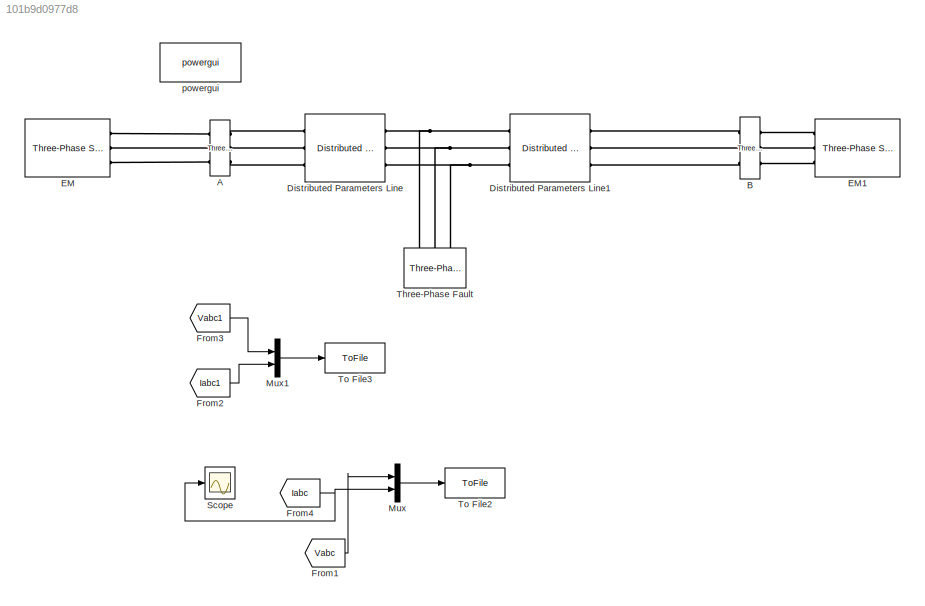
MODEL slx_101b9d0977d8
KIND model
CONFIG AbsTol = auto
CONFIG EnableMultiTasking = off
CONFIG FixedStep = auto
CONFIG MaxStep = auto
CONFIG MinStep = auto
CONFIG RelTol = 1e-3
CONFIG SampleTimeConstraint = Unconstrained
CONFIG Solver = ode23tb
CONFIG SolverName = ode23tb
CONFIG StartTime = 0.0
CONFIG StopTime = 0.1
BLOCK [Reference] A  REF=powerlib/Measurements/Three-Phase
V-I Measurement
  Ports = [0, 0, 0, 0, 0, 3, 3]
  SourceBlock = powerlib/Measurements/Three-Phase\nV-I Measurement
  SourceProductBaseCode = PS
  SourceProductName = Simscape Electrical
  SourceType = Three-Phase VI Measurement
BLOCK [Reference] B  REF=powerlib/Measurements/Three-Phase
V-I Measurement
  Ports = [0, 0, 0, 0, 0, 3, 3]
  SourceBlock = powerlib/Measurements/Three-Phase\nV-I Measurement
  SourceProductBaseCode = PS
  SourceProductName = Simscape Electrical
  SourceType = Three-Phase VI Measurement
BLOCK [Reference] Distributed Parameters Line  REF=powerlib/Elements/Distributed Parameters Line
  Ports = [0, 0, 0, 0, 0, 3, 3]
  SourceBlock = powerlib/Elements/Distributed Parameters Line
  SourceProductBaseCode = PS
  SourceProductName = Simscape Electrical
  SourceType = Distributed Parameters Line
BLOCK [Reference] Distributed Parameters Line1  REF=powerlib/Elements/Distributed Parameters Line
  Ports = [0, 0, 0, 0, 0, 3, 3]
  SourceBlock = powerlib/Elements/Distributed Parameters Line
  SourceProductBaseCode = PS
  SourceProductName = Simscape Electrical
  SourceType = Distributed Parameters Line
BLOCK [Reference] EM  REF=powerlib/Electrical
Sources/Three-Phase Source
  Ports = [0, 0, 0, 0, 0, 0, 3]
  SourceBlock = powerlib/Electrical\nSources/Three-Phase Source
  SourceProductBaseCode = PS
  SourceProductName = Simscape Electrical
  SourceType = Three-Phase Source
BLOCK [Reference] EM1  REF=powerlib/Electrical
Sources/Three-Phase Source
  Ports = [0, 0, 0, 0, 0, 0, 3]
  SourceBlock = powerlib/Electrical\nSources/Three-Phase Source
  SourceProductBaseCode = PS
  SourceProductName = Simscape Electrical
  SourceType = Three-Phase Source
BLOCK [From] From1
  GotoTag = Vabc
  TagVisibility = global
BLOCK [From] From2
  GotoTag = Iabc1
  TagVisibility = global
BLOCK [From] From3
  GotoTag = Vabc1
  TagVisibility = global
BLOCK [From] From4
  GotoTag = Iabc
  TagVisibility = global
BLOCK [Mux] Mux
  DisplayOption = bar
  Inputs = 2
  Ports = [2, 1]
BLOCK [Mux] Mux1
  DisplayOption = bar
  Inputs = 2
  Ports = [2, 1]
BLOCK [Scope] Scope
  Floating = off
  NumInputPorts = 1
  Ports = [1]
  ScopeSpecificationString = Simulink.scopes.TimeScopeBlockCfg('CurrentConfiguration', extmgr.ConfigurationSet(extmgr.Configuration('Core','General UI',true,'FigureColor',[1 1 1]),extmgr.Configuration('Core','Source UI',true),extmgr.Configuration('Sources','WiredSimulink',true),extmgr.Configuration('Visuals','Time Domain',true,'SerializedDisplays',{struct('MinYLimReal','-4403.77622','MaxYLimReal','5523.73996','YLabelReal','',...<+1665ch>
BLOCK [Reference] Three-Phase Fault  REF=powerlib/Elements/Three-Phase Fault
  Ports = [0, 0, 0, 0, 0, 3]
  SourceBlock = powerlib/Elements/Three-Phase Fault
  SourceProductBaseCode = PS
  SourceProductName = Simscape Electrical
  SourceType = Three-Phase Fault
BLOCK [ToFile] To File2
  Filename = xingbo.mat
  Ports = [1]
  SaveFormat = Timeseries
BLOCK [ToFile] To File3
  Filename = xingbo1.mat
  Ports = [1]
  SaveFormat = Timeseries
BLOCK [Reference] powergui  REF=powerlib/powergui
  Ports = []
  Priority = 1
  SourceBlock = powerlib/powergui
  SourceProductBaseCode = PS
  SourceProductName = Simscape Power Systems
  SourceType = PSB option menu block
LINE From1:1 -> Mux:1
LINE From2:1 -> Mux1:2
LINE From3:1 -> Mux1:1
NET From4:1 -> Mux:2, Scope:1
LINE Mux1:1 -> To File3:1
LINE Mux:1 -> To File2:1
PLINE A:LConn1 -- EM:RConn1
PLINE A:LConn2 -- EM:RConn2
PLINE A:LConn3 -- EM:RConn3
PLINE A:RConn1 -- Distributed Parameters Line:LConn1
PLINE A:RConn2 -- Distributed Parameters Line:LConn2
PLINE A:RConn3 -- Distributed Parameters Line:LConn3
PLINE B:LConn1 -- Distributed Parameters Line1:RConn1
PLINE B:LConn2 -- Distributed Parameters Line1:RConn2
PLINE B:LConn3 -- Distributed Parameters Line1:RConn3
PLINE B:RConn1 -- EM1:RConn1
PLINE B:RConn2 -- EM1:RConn2
PLINE B:RConn3 -- EM1:RConn3
PNET net1: Distributed Parameters Line1:LConn1 -- Distributed Parameters Line:RConn1 -- Three-Phase Fault:LConn1
PNET net2: Distributed Parameters Line1:LConn2 -- Distributed Parameters Line:RConn2 -- Three-Phase Fault:LConn2
PNET net3: Distributed Parameters Line1:LConn3 -- Distributed Parameters Line:RConn3 -- Three-Phase Fault:LConn3
note: NET lines group one-source signal fan-out (src -> all destinations, sorted); 1:1 wires keep LINE; PNET lines group multi-terminal physical nets as a canonical sorted terminal list (undirected conserving connections); 2-terminal nets keep the pairwise PLINE form
